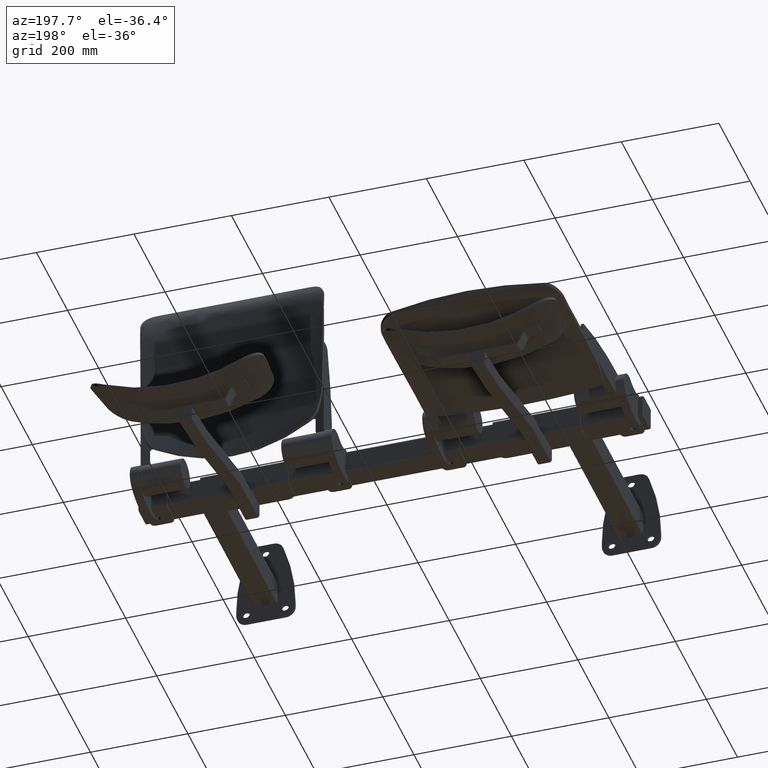
[diagram: clean part render]
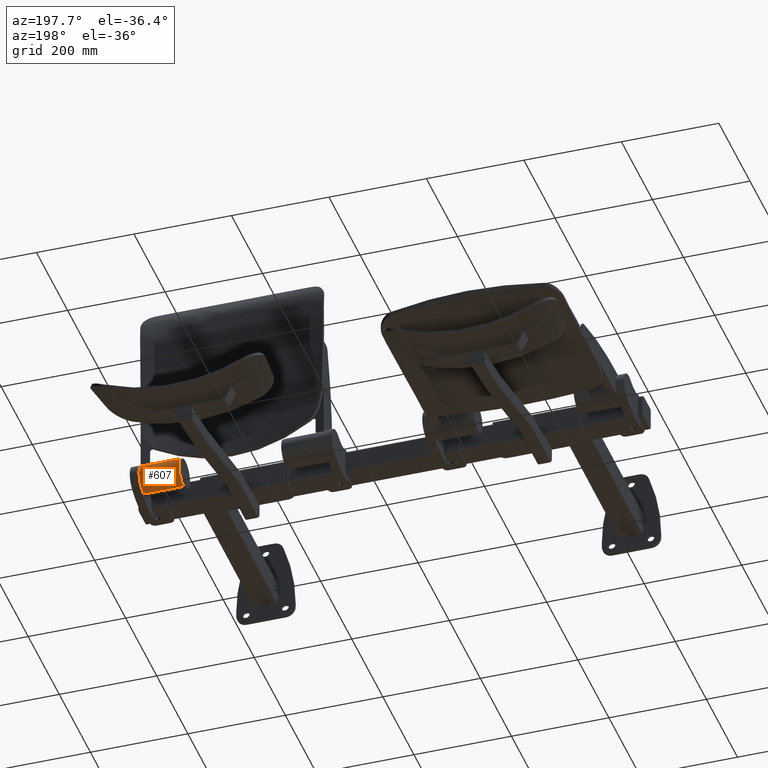
[diagram: same view with one face highlighted and labeled with its STEP entity id]
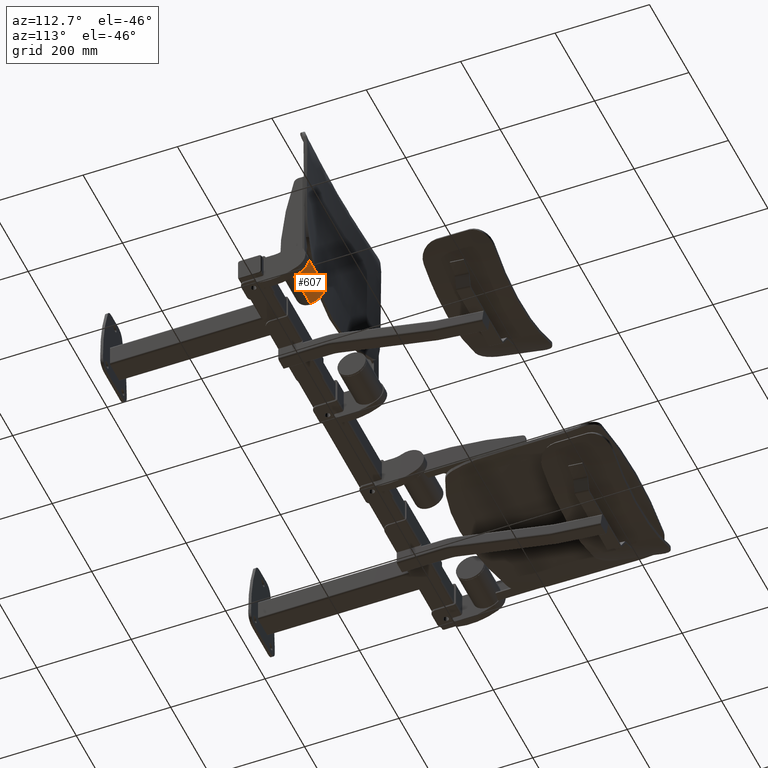
[diagram: same view with one face highlighted and labeled with its STEP entity id]
A machine part, auxiliary view. The second image highlights one B-rep face of the part: STEP entity #607.
A second angle (auxiliary view) of the same face is appended — the face is thin or edge-on in the first view.
In plain terms, the highlighted cylindrical surface (edge-blend (fillet) strip) has radius 30.5 mm, axis along (1, 0, 0).
Its self-contained STEP definition (entity closure, byte-faithful):
#607 = ADVANCED_FACE ( 'NONE', ( #5418 ), #5425, .T. ) ;
#2206 = EDGE_CURVE ( 'NONE', #2793, #2801, #12206, .T. ) ;
#2208 = EDGE_CURVE ( 'NONE', #2798, #2793, #12205, .T. ) ;
#2210 = EDGE_CURVE ( 'NONE', #2801, #2803, #12209, .T. ) ;
#2212 = EDGE_CURVE ( 'NONE', #2803, #2804, #23273, .T. ) ;
#2214 = EDGE_CURVE ( 'NONE', #2804, #2805, #23256, .T. ) ;
#2216 = EDGE_CURVE ( 'NONE', #2805, #2807, #23262, .T. ) ;
#2218 = EDGE_CURVE ( 'NONE', #2807, #2808, #12207, .T. ) ;
#2220 = EDGE_CURVE ( 'NONE', #2808, #2810, #23261, .T. ) ;
#2222 = EDGE_CURVE ( 'NONE', #2749, #2810, #12212, .T. ) ;
#2224 = EDGE_CURVE ( 'NONE', #2798, #2749, #12213, .T. ) ;
#2685 = AXIS2_PLACEMENT_3D ( 'NONE', #5339, #5340, #5348 ) ;
#2749 = VERTEX_POINT ( 'NONE', #12850 ) ;
#2793 = VERTEX_POINT ( 'NONE', #12875 ) ;
#2798 = VERTEX_POINT ( 'NONE', #12878 ) ;
#2801 = VERTEX_POINT ( 'NONE', #12880 ) ;
#2803 = VERTEX_POINT ( 'NONE', #12881 ) ;
#2804 = VERTEX_POINT ( 'NONE', #12882 ) ;
#2805 = VERTEX_POINT ( 'NONE', #12883 ) ;
#2807 = VERTEX_POINT ( 'NONE', #12884 ) ;
#2808 = VERTEX_POINT ( 'NONE', #12885 ) ;
#2810 = VERTEX_POINT ( 'NONE', #12886 ) ;
#3446 = ORIENTED_EDGE ( 'NONE', *, *, #2208, .T. ) ;
#3447 = ORIENTED_EDGE ( 'NONE', *, *, #2206, .T. ) ;
#3448 = ORIENTED_EDGE ( 'NONE', *, *, #2210, .T. ) ;
#3449 = ORIENTED_EDGE ( 'NONE', *, *, #2212, .T. ) ;
#3450 = ORIENTED_EDGE ( 'NONE', *, *, #2214, .T. ) ;
#3451 = ORIENTED_EDGE ( 'NONE', *, *, #2216, .T. ) ;
#3452 = ORIENTED_EDGE ( 'NONE', *, *, #2218, .T. ) ;
#3453 = ORIENTED_EDGE ( 'NONE', *, *, #2220, .T. ) ;
#3454 = ORIENTED_EDGE ( 'NONE', *, *, #2222, .F. ) ;
#3455 = ORIENTED_EDGE ( 'NONE', *, *, #2224, .F. ) ;
#3603 = EDGE_LOOP ( 'NONE', ( #3446, #3447, #3448, #3449, #3450, #3451, #3452, #3453, #3454, #3455 ) ) ;
#5339 = CARTESIAN_POINT ( 'NONE',  ( 106.5000000000000100, 0.0000000000000000000, 0.0000000000000000000 ) ) ;
#5340 = DIRECTION ( 'NONE',  ( 1.000000000000000000, 0.0000000000000000000, 0.0000000000000000000 ) ) ;
#5348 = DIRECTION ( 'NONE',  ( 0.0000000000000000000, 2.465190328815658300E-032, -1.000000000000000000 ) ) ;
#5418 = FACE_OUTER_BOUND ( 'NONE', #3603, .T. ) ;
#5425 = CYLINDRICAL_SURFACE ( 'NONE', #2685, 30.50000000000004300 ) ;
#9386 = AXIS2_PLACEMENT_3D ( 'NONE', #11808, #11809, #11810 ) ;
#9387 = AXIS2_PLACEMENT_3D ( 'NONE', #11813, #11814, #11815 ) ;
#9388 = AXIS2_PLACEMENT_3D ( 'NONE', #11832, #11833, #11834 ) ;
#11774 = CARTESIAN_POINT ( 'NONE',  ( 106.5000000000000100, 3.735172737399431500E-015, 30.50000000000004300 ) ) ;
#11799 = DIRECTION ( 'NONE',  ( 1.000000000000000000, 0.0000000000000000000, 0.0000000000000000000 ) ) ;
#11806 = CARTESIAN_POINT ( 'NONE',  ( 170.7216098692875300, 15.18417962927588700, 26.45166703604678900 ) ) ;
#11807 = CARTESIAN_POINT ( 'NONE',  ( 170.6706411208563500, 15.50950218202607700, 26.26492054208551600 ) ) ;
#11808 = CARTESIAN_POINT ( 'NONE',  ( 106.5000000000000100, 0.0000000000000000000, 0.0000000000000000000 ) ) ;
#11809 = DIRECTION ( 'NONE',  ( 1.000000000000000000, 0.0000000000000000000, 0.0000000000000000000 ) ) ;
#11810 = DIRECTION ( 'NONE',  ( 0.0000000000000000000, 2.465190328815658300E-032, -1.000000000000000000 ) ) ;
#11811 = CARTESIAN_POINT ( 'NONE',  ( 180.0314288730249900, 16.65871010170555200, 25.56322751414897400 ) ) ;
#11812 = CARTESIAN_POINT ( 'NONE',  ( 175.4358879174290800, 15.93084791946501600, 26.02305339040149000 ) ) ;
#11813 = CARTESIAN_POINT ( 'NONE',  ( 184.5000000000000000, 0.0000000000000000000, 0.0000000000000000000 ) ) ;
#11814 = DIRECTION ( 'NONE',  ( -1.000000000000000000, -0.0000000000000000000, -0.0000000000000000000 ) ) ;
#11815 = DIRECTION ( 'NONE',  ( 0.0000000000000000000, 2.465190328815658300E-032, -1.000000000000000000 ) ) ;
#11816 = CARTESIAN_POINT ( 'NONE',  ( 184.5000000000000000, 17.36646223870187800, 25.07301316778149000 ) ) ;
#11817 = CARTESIAN_POINT ( 'NONE',  ( 170.7216098692875300, 15.18417962927588700, 26.45166703604678900 ) ) ;
#11818 = CARTESIAN_POINT ( 'NONE',  ( 170.5687036239939100, 16.14959166710157500, 25.87355192055945700 ) ) ;
#11819 = CARTESIAN_POINT ( 'NONE',  ( 188.4126979199253900, 18.55120364030506200, 24.21199833246198800 ) ) ;
#11820 = CARTESIAN_POINT ( 'NONE',  ( 175.1783462251981400, 16.83501482649551700, 25.44572878373721600 ) ) ;
#11821 = CARTESIAN_POINT ( 'NONE',  ( 170.6196723724251600, 15.83137921009306800, 26.07217177993751600 ) ) ;
#11822 = CARTESIAN_POINT ( 'NONE',  ( 170.5687036239939100, 16.14959166710157500, 25.87355192055945700 ) ) ;
#11823 = CARTESIAN_POINT ( 'NONE',  ( 106.5000000000000100, 18.82153022471873200, 24.00000000000002100 ) ) ;
#11824 = CARTESIAN_POINT ( 'NONE',  ( 188.4560745817458400, 18.27733417603490200, 24.41939956618009300 ) ) ;
#11825 = CARTESIAN_POINT ( 'NONE',  ( 179.7833806838692100, 17.52570757912545900, 24.97693604120759400 ) ) ;
#11826 = CARTESIAN_POINT ( 'NONE',  ( 184.3827181275590300, 18.21920469939759700, 24.46038797978172900 ) ) ;
#11827 = DIRECTION ( 'NONE',  ( 1.000000000000000000, 0.0000000000000000000, 0.0000000000000000000 ) ) ;
#11828 = DIRECTION ( 'NONE',  ( 1.000000000000000000, 0.0000000000000000000, 0.0000000000000000000 ) ) ;
#11829 = CARTESIAN_POINT ( 'NONE',  ( 188.3698823951482400, 18.82153022471873200, 24.00000000000002100 ) ) ;
#11830 = CARTESIAN_POINT ( 'NONE',  ( 188.5000000000000000, 17.99999999999991800, 24.62214450449035000 ) ) ;
#11831 = CARTESIAN_POINT ( 'NONE',  ( 106.5000000000000100, 7.518830502887768800E-031, -30.50000000000004300 ) ) ;
#11832 = CARTESIAN_POINT ( 'NONE',  ( 188.5000000000000000, 0.0000000000000000000, 0.0000000000000000000 ) ) ;
#11833 = DIRECTION ( 'NONE',  ( 1.000000000000000000, 0.0000000000000000000, 0.0000000000000000000 ) ) ;
#11834 = DIRECTION ( 'NONE',  ( 0.0000000000000000000, 2.465190328815658300E-032, -1.000000000000000000 ) ) ;
#12205 = CIRCLE ( 'NONE', #9386, 30.50000000000004300 ) ;
#12206 = LINE ( 'NONE', #11774, #12208 ) ;
#12207 = LINE ( 'NONE', #11823, #12211 ) ;
#12208 = VECTOR ( 'NONE', #11799, 1000.000000000000000 ) ;
#12209 = CIRCLE ( 'NONE', #9387, 30.50000000000004300 ) ;
#12211 = VECTOR ( 'NONE', #11827, 1000.000000000000000 ) ;
#12212 = CIRCLE ( 'NONE', #9388, 30.50000000000004300 ) ;
#12213 = LINE ( 'NONE', #11831, #12215 ) ;
#12215 = VECTOR ( 'NONE', #11828, 1000.000000000000000 ) ;
#12850 = CARTESIAN_POINT ( 'NONE',  ( 188.5000000000000000, 7.518830502887758300E-031, -30.50000000000000000 ) ) ;
#12875 = CARTESIAN_POINT ( 'NONE',  ( 106.5000000000000100, 3.735172737399426800E-015, 30.50000000000000000 ) ) ;
#12878 = CARTESIAN_POINT ( 'NONE',  ( 106.5000000000000100, 7.518830502887768800E-031, -30.50000000000004300 ) ) ;
#12880 = CARTESIAN_POINT ( 'NONE',  ( 184.5000000000000000, 3.735172737399426800E-015, 30.50000000000000000 ) ) ;
#12881 = CARTESIAN_POINT ( 'NONE',  ( 184.5000000000000000, 17.36646223870187800, 25.07301316778149000 ) ) ;
#12882 = CARTESIAN_POINT ( 'NONE',  ( 170.7216098692875300, 15.18417962927588700, 26.45166703604678900 ) ) ;
#12883 = CARTESIAN_POINT ( 'NONE',  ( 170.5687036239939100, 16.14959166710157500, 25.87355192055945700 ) ) ;
#12884 = CARTESIAN_POINT ( 'NONE',  ( 184.3116988856749000, 18.55534868448734200, 24.27932724265397000 ) ) ;
#12885 = CARTESIAN_POINT ( 'NONE',  ( 188.3698823951482400, 18.82153022471873200, 24.00000000000002100 ) ) ;
#12886 = CARTESIAN_POINT ( 'NONE',  ( 188.5000000000000000, 17.99999999999991800, 24.62214450449035000 ) ) ;
#23256 = B_SPLINE_CURVE_WITH_KNOTS ( 'NONE', 3,
 ( #11806, #11807, #11821, #11822 ),
 .UNSPECIFIED., .F., .F.,
 ( 4, 4 ),
 ( 0.0000000000000000000, 1.000000000000000000 ),
 .UNSPECIFIED. ) ;
#23261 =( BOUNDED_CURVE ( )  B_SPLINE_CURVE ( 3, ( #11829, #11819, #11824, #11830 ),
 .UNSPECIFIED., .F., .F. ) 
 B_SPLINE_CURVE_WITH_KNOTS ( ( 4, 4 ),
 ( 4.047337869887647000, 4.081127085443192500 ),
 .UNSPECIFIED. ) 
 CURVE ( )  GEOMETRIC_REPRESENTATION_ITEM ( )  RATIONAL_B_SPLINE_CURVE ( ( 1.000000000000000000, 0.9999048596723515400, 0.9999048596723515400, 1.000000000000000000 ) ) 
 REPRESENTATION_ITEM ( '' )  );
#23262 = B_SPLINE_CURVE_WITH_KNOTS ( 'NONE', 3,
 ( #11818, #11820, #11825, #11826 ),
 .UNSPECIFIED., .F., .F.,
 ( 4, 4 ),
 ( 0.0000000000000000000, 0.01403963981166065100 ),
 .UNSPECIFIED. ) ;
#23273 =( BOUNDED_CURVE ( )  B_SPLINE_CURVE ( 3, ( #11816, #11811, #11812, #11817 ),
 .UNSPECIFIED., .F., .F. ) 
 B_SPLINE_CURVE_WITH_KNOTS ( ( 4, 4 ),
 ( 0.9650300122145949500, 1.049687659456672600 ),
 .UNSPECIFIED. ) 
 CURVE ( )  GEOMETRIC_REPRESENTATION_ITEM ( )  RATIONAL_B_SPLINE_CURVE ( ( 1.000000000000000000, 0.9994028460664582400, 0.9994028460664582400, 1.000000000000000000 ) ) 
 REPRESENTATION_ITEM ( '' )  );